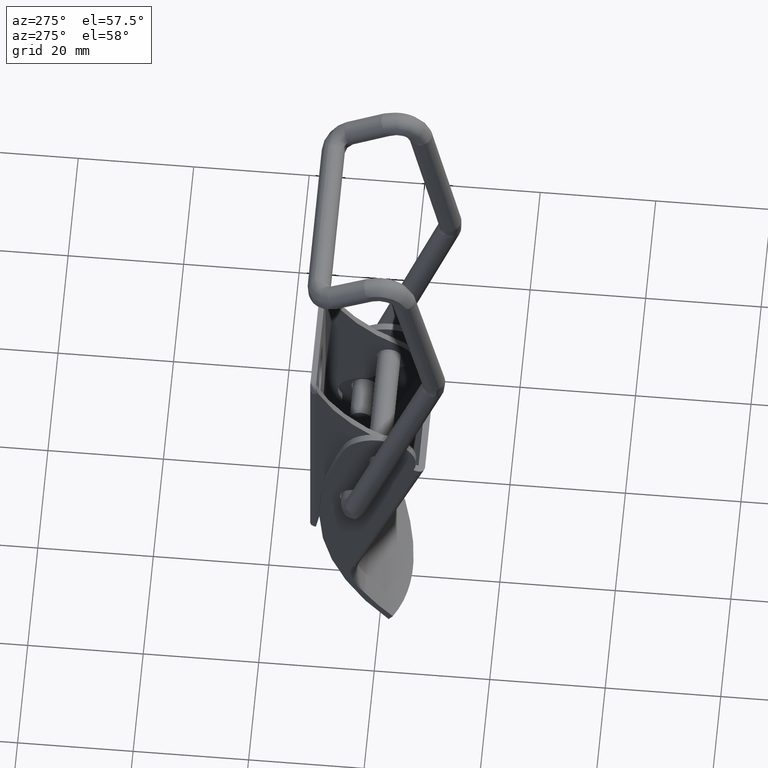
[diagram: clean part render]
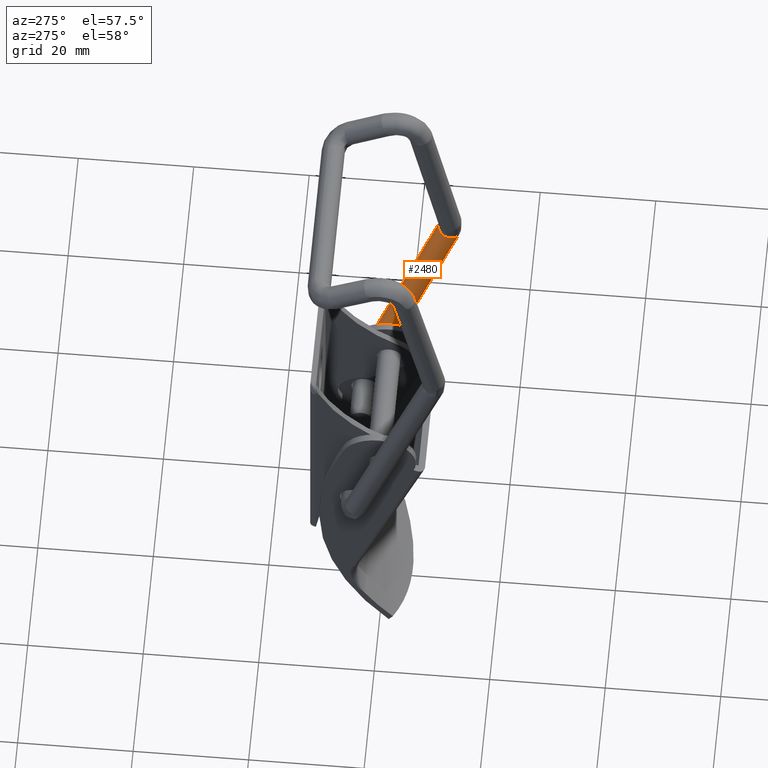
[diagram: same view with one face highlighted and labeled with its STEP entity id]
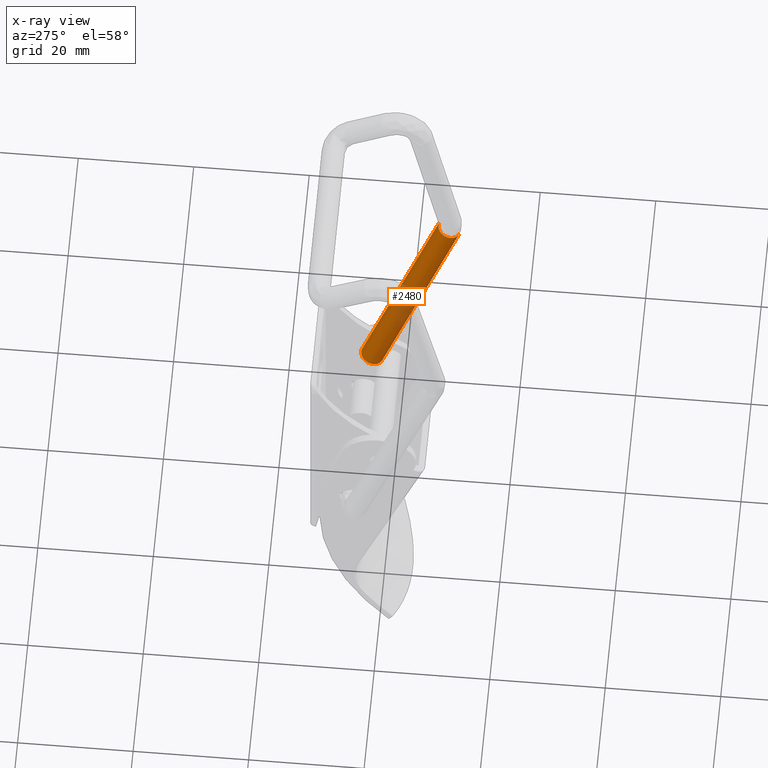
[diagram: x-ray of the same camera — body ghosted, the highlighted face saturated]
A machine part, auxiliary view. The second image highlights one B-rep face of the part: STEP entity #2480.
The next image is the same camera in x-ray: the body ghosted, the highlighted face saturated — about 18% of this face is hidden behind the body in this view.
In plain terms, the highlighted face is a freeform B-spline surface patch.
Its self-contained STEP definition (entity closure, byte-faithful):
#2253=CARTESIAN_POINT('',(17.081917434585840,-8.058630081201427,32.277990357281119));
#2254=VERTEX_POINT('',#2253);
#2268=CARTESIAN_POINT('',(14.448642916505220,-9.259698428430010,31.943899987887718));
#2269=VERTEX_POINT('',#2268);
#2270=CARTESIAN_POINT('',(17.081917434585840,-8.058630081201427,32.277990357281119));
#2271=CARTESIAN_POINT('',(17.044025955097322,-8.044683375290244,32.283293430810467));
#2272=CARTESIAN_POINT('',(17.005678118661208,-8.031843767287658,32.288247572938133));
#2273=CARTESIAN_POINT('',(16.717916634770781,-7.944948135133023,32.322363124868417));
#2274=CARTESIAN_POINT('',(16.452961057354461,-7.916994008585218,32.336922314906168));
#2275=CARTESIAN_POINT('',(15.931121275083910,-7.959786610692133,32.333918709880997));
#2276=CARTESIAN_POINT('',(15.674442391900371,-8.030516502285256,32.316357096608400));
#2277=CARTESIAN_POINT('',(15.208254928071019,-8.259982603897759,32.251761247468977));
#2278=CARTESIAN_POINT('',(14.998929772285081,-8.418628528804819,32.204752427310403));
#2279=CARTESIAN_POINT('',(14.659367442265070,-8.799833996067799,32.088398466525383));
#2280=CARTESIAN_POINT('',(14.529263871307871,-9.022243550350588,32.019099106213922));
#2281=CARTESIAN_POINT('',(14.448642916505220,-9.259698428430010,31.943899987887718));
#2282=B_SPLINE_CURVE_WITH_KNOTS('',3,(#2270,#2271,#2272,#2273,#2274,#2275,#2276,#2277,#2278,#2279,#2280,#2281),.UNSPECIFIED.,.F.,.U.,(4,2,2,2,2,4),(0.740277488079632,0.750000000000000,0.812500000000000,0.875000000000000,0.937500000000000,1.0),.UNSPECIFIED.);
#2283=EDGE_CURVE('',#2254,#2269,#2282,.T.);
#2342=CARTESIAN_POINT('',(15.620158903979069,-11.609720208851570,31.158727345292871));
#2343=VERTEX_POINT('',#2342);
#2344=CARTESIAN_POINT('',(14.448642916505220,-9.259698428430010,31.943899987887718));
#2345=CARTESIAN_POINT('',(14.368021912050260,-9.497153426970689,31.868700831594889));
#2346=CARTESIAN_POINT('',(14.336946804157510,-9.749467284166508,31.787660969157820));
#2347=CARTESIAN_POINT('',(14.378572220955411,-10.245782353931730,31.626114679542749));
#2348=CARTESIAN_POINT('',(14.451256367822040,-10.489588287714840,31.545671813931381));
#2349=CARTESIAN_POINT('',(14.689412117955650,-10.931748959899490,31.397571505460100));
#2350=CARTESIAN_POINT('',(14.854790017104660,-11.129929726957689,31.329972333747360));
#2351=CARTESIAN_POINT('',(15.222229198601370,-11.425677645930650,31.226584659951161));
#2352=CARTESIAN_POINT('',(15.414470245926600,-11.534010524914470,31.187514968081469));
#2353=CARTESIAN_POINT('',(15.620158903979069,-11.609720208851570,31.158727345292871));
#2354=B_SPLINE_CURVE_WITH_KNOTS('',3,(#2344,#2345,#2346,#2347,#2348,#2349,#2350,#2351,#2352,#2353),.UNSPECIFIED.,.F.,.U.,(4,2,2,2,4),(0.0,0.062500000000000,0.125000000000000,0.187499999999999,0.240277488079631),.UNSPECIFIED.);
#2355=EDGE_CURVE('',#2269,#2343,#2354,.T.);
#2394=CARTESIAN_POINT('',(14.767358634123489,1.669073824400114,-9.856978748182881));
#2395=VERTEX_POINT('',#2394);
#2396=CARTESIAN_POINT('',(14.767358634123489,1.669073824400114,-9.856978748182881));
#2397=CARTESIAN_POINT('',(15.620158903979069,-11.609720208851570,31.158727345292871));
#2398=QUASI_UNIFORM_CURVE('',1,(#2396,#2397),.UNSPECIFIED.,.F.,.U.);
#2399=EDGE_CURVE('',#2395,#2343,#2398,.T.);
#2414=CARTESIAN_POINT('',(16.229072325651611,5.220055946032888,-8.737749770558462));
#2415=VERTEX_POINT('',#2414);
#2425=CARTESIAN_POINT('',(16.229072325651611,5.220055946032888,-8.737749770558462));
#2426=CARTESIAN_POINT('',(17.081917434585840,-8.058630081201427,32.277990357281119));
#2427=QUASI_UNIFORM_CURVE('',1,(#2425,#2426),.UNSPECIFIED.,.F.,.U.);
#2428=EDGE_CURVE('',#2415,#2254,#2427,.T.);
#2434=CARTESIAN_POINT('',(16.207780404334311,5.552093486797393,-9.763121092413575));
#2435=CARTESIAN_POINT('',(14.346533041873684,6.236241628599362,-9.502929670951790));
#2436=CARTESIAN_POINT('',(13.615647550192060,4.460681527774546,-10.062565915675330));
#2437=CARTESIAN_POINT('',(12.884762058510429,2.685121426949730,-10.622202160398878));
#2438=CARTESIAN_POINT('',(14.746009420971051,2.000973285147762,-10.882393581860660));
#2439=CARTESIAN_POINT('',(17.103777242379831,-8.398882757476663,33.329023000721158));
#2440=CARTESIAN_POINT('',(15.242529879919216,-7.714734615674695,33.589214422182941));
#2441=CARTESIAN_POINT('',(14.511644388237579,-9.490294716499511,33.029578177459399));
#2442=CARTESIAN_POINT('',(13.780758896555952,-11.265854817324326,32.469941932735857));
#2443=CARTESIAN_POINT('',(15.642006259016570,-11.950002959126291,32.209750511274073));
#2451=(BOUNDED_SURFACE()B_SPLINE_SURFACE(2,1,((#2434,#2439),(#2435,#2440),(#2436,#2441),(#2437,#2442),(#2438,#2443)),.UNSPECIFIED.,.F.,.F.,.U.)B_SPLINE_SURFACE_WITH_KNOTS((3,2,3),(2,2),(0.0,3.313708498984761,6.627416997969522),(0.0,45.303039975762928),.UNSPECIFIED.)GEOMETRIC_REPRESENTATION_ITEM()RATIONAL_B_SPLINE_SURFACE(((1.0,1.0),(0.707106781186548,0.707106781186548),(1.0,1.0),(0.707106781186548,0.707106781186548),(1.0,1.0)))REPRESENTATION_ITEM('')SURFACE());
#2452=ORIENTED_EDGE('',*,*,#2355,.F.);
#2453=ORIENTED_EDGE('',*,*,#2283,.F.);
#2454=ORIENTED_EDGE('',*,*,#2428,.F.);
#2455=CARTESIAN_POINT('',(13.595820227110320,4.019041601812980,-9.071823122769954));
#2456=VERTEX_POINT('',#2455);
#2457=CARTESIAN_POINT('',(16.229072325651611,5.220055946032888,-8.737749770558462));
#2458=CARTESIAN_POINT('',(16.191219621186129,5.234066762697433,-8.732426747562281));
#2459=CARTESIAN_POINT('',(16.152889536267551,5.246945556843063,-8.727460288116514));
#2460=CARTESIAN_POINT('',(15.616089402652250,5.409035072058771,-8.663822744515178));
#2461=CARTESIAN_POINT('',(15.054728200805471,5.362992150446921,-8.667056880265447));
#2462=CARTESIAN_POINT('',(14.122345218866871,4.904040544755491,-8.796254692576099));
#2463=CARTESIAN_POINT('',(13.757064897204391,4.493958007888144,-8.921422790621080));
#2464=CARTESIAN_POINT('',(13.595820227110320,4.019041601812980,-9.071823122769954));
#2465=B_SPLINE_CURVE_WITH_KNOTS('',3,(#2457,#2458,#2459,#2460,#2461,#2462,#2463,#2464),.UNSPECIFIED.,.F.,.U.,(4,2,2,4),(0.740274445075457,0.750000000000000,0.875000000000000,1.0),.UNSPECIFIED.);
#2466=EDGE_CURVE('',#2415,#2456,#2465,.T.);
#2467=ORIENTED_EDGE('',*,*,#2466,.T.);
#2468=CARTESIAN_POINT('',(13.595820227110320,4.019041601812980,-9.071823122769954));
#2469=CARTESIAN_POINT('',(13.434575098751470,3.544124090093423,-9.222223803339992));
#2470=CARTESIAN_POINT('',(13.479348375530980,3.010214185251209,-9.396006780981455));
#2471=CARTESIAN_POINT('',(13.937122072275450,2.160275080997454,-9.680690783031414));
#2472=CARTESIAN_POINT('',(14.318707400479830,1.835157042329144,-9.793881096120037));
#2473=CARTESIAN_POINT('',(14.767358634123489,1.669073824400114,-9.856978748182881));
#2474=B_SPLINE_CURVE_WITH_KNOTS('',3,(#2468,#2469,#2470,#2471,#2472,#2473),.UNSPECIFIED.,.F.,.U.,(4,2,4),(0.0,0.125000000000000,0.240274445075455),.UNSPECIFIED.);
#2475=EDGE_CURVE('',#2456,#2395,#2474,.T.);
#2476=ORIENTED_EDGE('',*,*,#2475,.T.);
#2477=ORIENTED_EDGE('',*,*,#2399,.T.);
#2478=EDGE_LOOP('',(#2452,#2453,#2454,#2467,#2476,#2477));
#2479=FACE_OUTER_BOUND('',#2478,.T.);
#2480=ADVANCED_FACE('',(#2479),#2451,.T.);